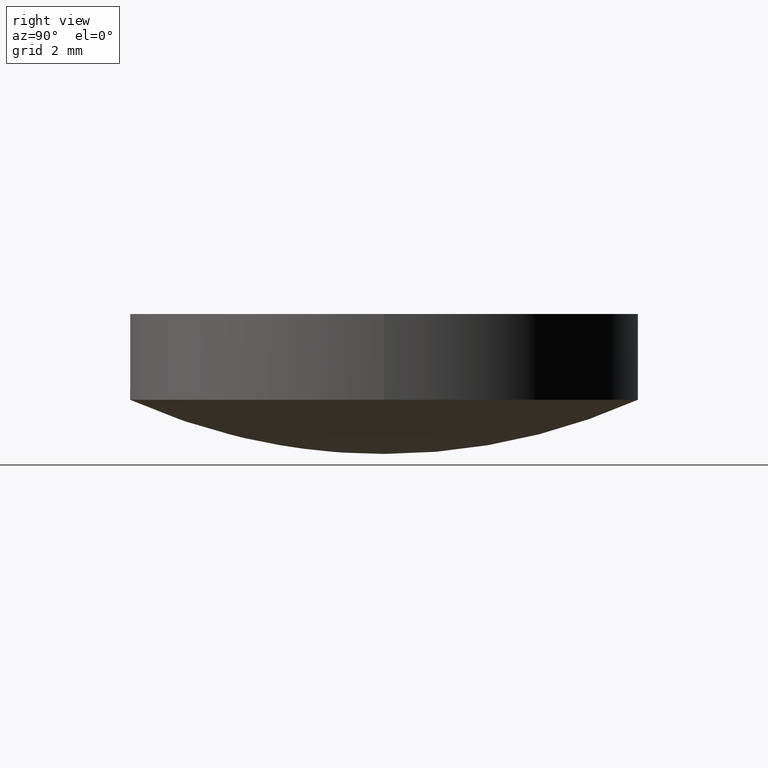
[diagram: clean part render]
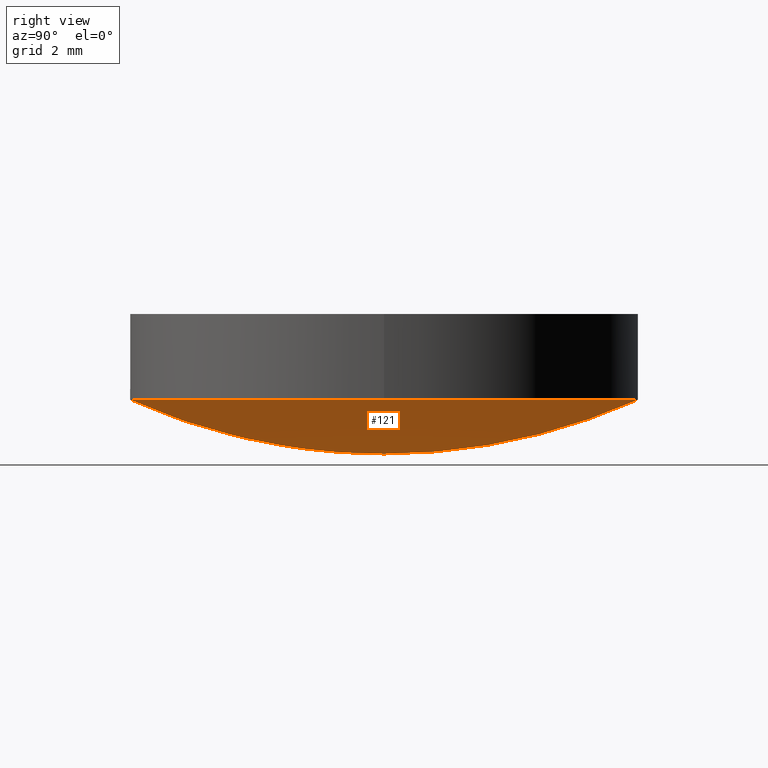
[diagram: same view with one face highlighted and labeled with its STEP entity id]
A machine part, right view. The second image highlights one B-rep face of the part: STEP entity #121.
In plain terms, the highlighted spherical surface has radius 15.56 mm.
Its self-contained STEP definition (entity closure, byte-faithful):
#2 = FACE_OUTER_BOUND ( 'NONE', #76, .T. ) ;
#7 = VERTEX_POINT ( 'NONE', #125 ) ;
#18 = CARTESIAN_POINT ( 'NONE',  ( 6.349999999999999645, 0.0000000000000000000, 1.354680573813199951 ) ) ;
#20 = CARTESIAN_POINT ( 'NONE',  ( -6.349999999999999645, 7.776507174585690191E-16, 1.354680573813199951 ) ) ;
#21 =( BOUNDED_CURVE ( )  B_SPLINE_CURVE ( 2, ( #123, #115, #179, #59, #148 ),
 .UNSPECIFIED., .F., .T. ) 
 B_SPLINE_CURVE_WITH_KNOTS ( ( 3, 2, 3 ),
 ( 3.141592653589778461, 4.712388980384684345, 6.283185307179590673 ),
 .UNSPECIFIED. ) 
 CURVE ( )  GEOMETRIC_REPRESENTATION_ITEM ( )  RATIONAL_B_SPLINE_CURVE ( ( 1.000000000000002220, 0.7071067811865459074, 1.000000000000000000, 0.7071067811865480168, 1.000000000000000000 ) ) 
 REPRESENTATION_ITEM ( '' )  );
#59 = CARTESIAN_POINT ( 'NONE',  ( 6.350000000000000533, -6.350000000000000533, 1.354680573813200395 ) ) ;
#61 = SPHERICAL_SURFACE ( 'NONE', #79, 15.55999999999999872 ) ;
#65 = CARTESIAN_POINT ( 'NONE',  ( 6.349999999999999645, 0.0000000000000000000, 1.354680573813199951 ) ) ;
#75 = EDGE_CURVE ( 'NONE', #7, #117, #21, .T. ) ;
#76 = EDGE_LOOP ( 'NONE', ( #152, #80 ) ) ;
#79 = AXIS2_PLACEMENT_3D ( 'NONE', #164, #166, #85 ) ;
#80 = ORIENTED_EDGE ( 'NONE', *, *, #75, .F. ) ;
#85 = DIRECTION ( 'NONE',  ( -2.334397171258999764E-16, -1.000000000000000000, 0.0000000000000000000 ) ) ;
#89 =( BOUNDED_CURVE ( )  B_SPLINE_CURVE ( 2, ( #65, #107, #92, #141, #20 ),
 .UNSPECIFIED., .F., .F. ) 
 B_SPLINE_CURVE_WITH_KNOTS ( ( 3, 2, 3 ),
 ( 0.0000000000000000000, 1.570796326794894116, 3.141592653589778905 ),
 .UNSPECIFIED. ) 
 CURVE ( )  GEOMETRIC_REPRESENTATION_ITEM ( )  RATIONAL_B_SPLINE_CURVE ( ( 1.000000000000000000, 0.7071067811865480168, 1.000000000000000000, 0.7071067811865501263, 0.9999999999999978906 ) ) 
 REPRESENTATION_ITEM ( '' )  );
#92 = CARTESIAN_POINT ( 'NONE',  ( 3.888253587292850026E-16, 6.349999999999999645, 1.354680573813199951 ) ) ;
#107 = CARTESIAN_POINT ( 'NONE',  ( 6.350000000000000533, 6.350000000000000533, 1.354680573813200395 ) ) ;
#115 = CARTESIAN_POINT ( 'NONE',  ( -6.350000000000066258, -6.349999999999999645, 1.354680573813200395 ) ) ;
#117 = VERTEX_POINT ( 'NONE', #18 ) ;
#121 = ADVANCED_FACE ( 'NONE', ( #2 ), #61, .T. ) ;
#123 = CARTESIAN_POINT ( 'NONE',  ( -6.349999999999999645, 7.776507174585690191E-16, 1.354680573813199951 ) ) ;
#125 = CARTESIAN_POINT ( 'NONE',  ( -6.349999999999999645, 7.776507174585690191E-16, 1.354680573813199951 ) ) ;
#141 = CARTESIAN_POINT ( 'NONE',  ( -6.349999999999934808, 6.350000000000001421, 1.354680573813200617 ) ) ;
#148 = CARTESIAN_POINT ( 'NONE',  ( 6.349999999999999645, 0.0000000000000000000, 1.354680573813199951 ) ) ;
#152 = ORIENTED_EDGE ( 'NONE', *, *, #174, .F. ) ;
#164 = CARTESIAN_POINT ( 'NONE',  ( 3.552713678800499352E-15, 6.217248937900879782E-15, 15.55999999999999872 ) ) ;
#166 = DIRECTION ( 'NONE',  ( 3.419090247868619701E-17, -7.981514602903739017E-33, -1.000000000000000000 ) ) ;
#174 = EDGE_CURVE ( 'NONE', #117, #7, #89, .T. ) ;
#179 = CARTESIAN_POINT ( 'NONE',  ( -1.166476076187850077E-15, -6.349999999999999645, 1.354680573813199951 ) ) ;